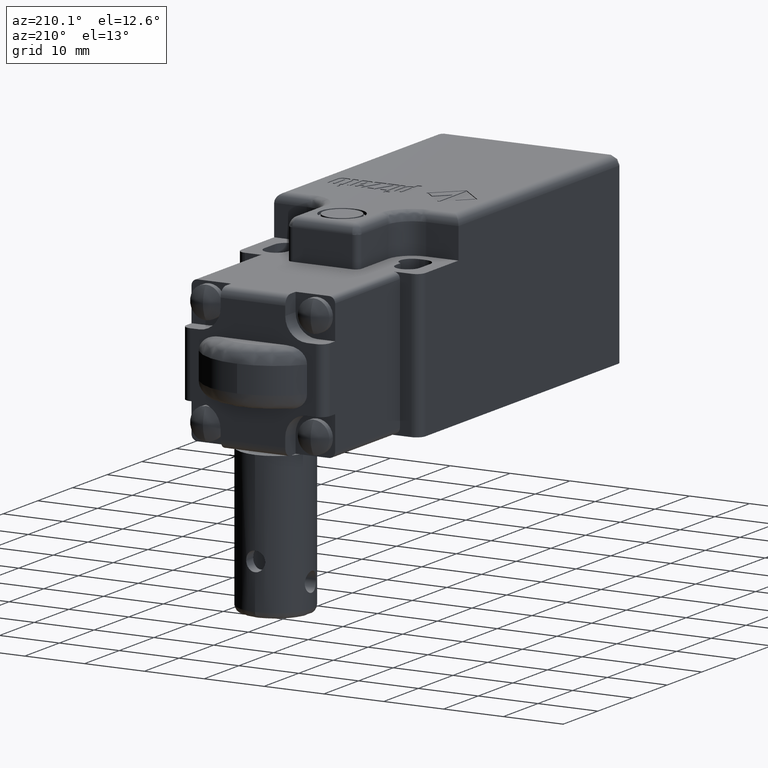
[diagram: clean part render]
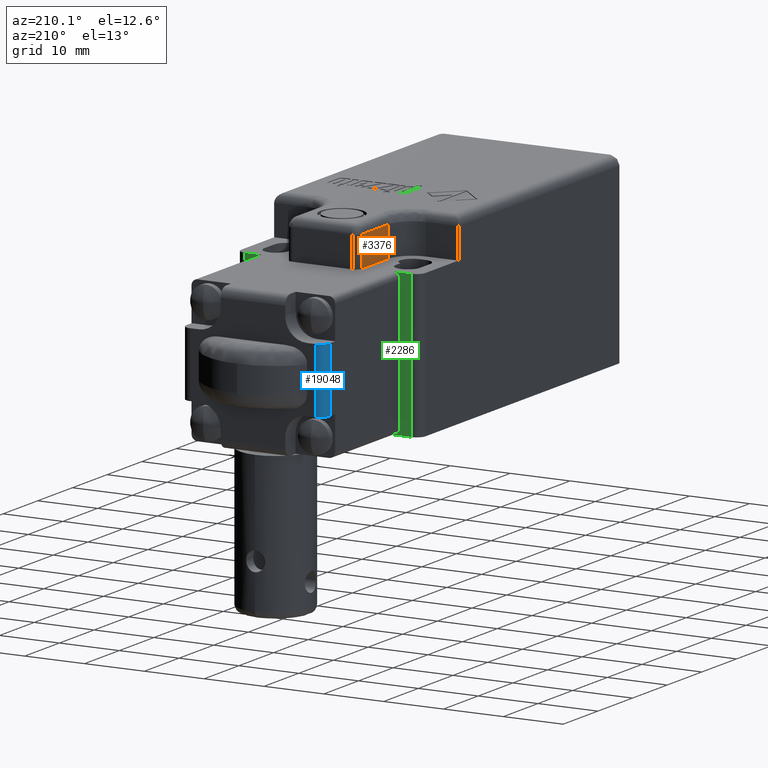
[diagram: same view with three faces highlighted in distinct colors, each labeled with its STEP entity id]
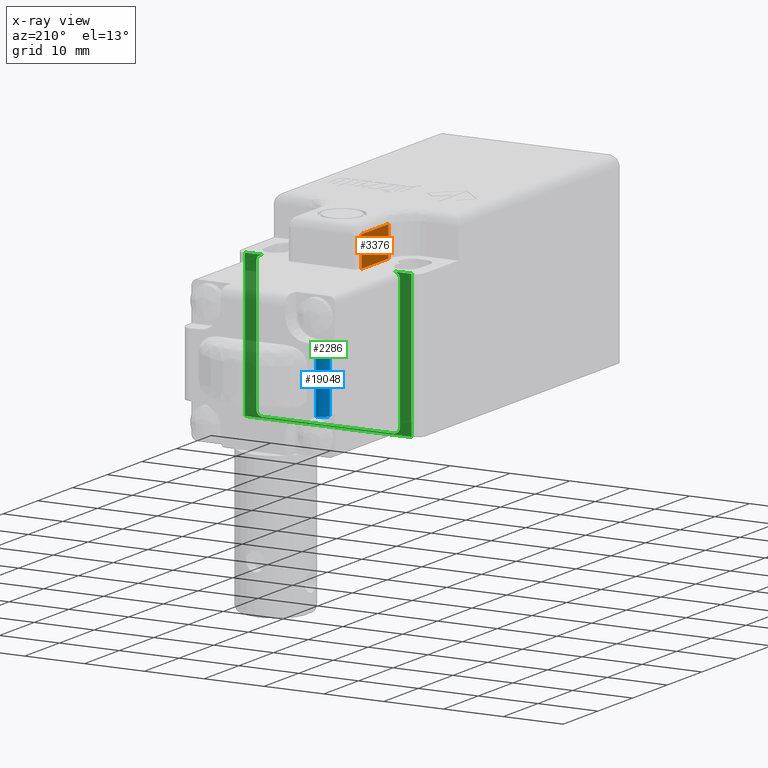
[diagram: x-ray of the same camera — body ghosted, the three highlighted faces saturated]
A machine part, auxiliary view with three faces highlighted in distinct colors.
The next image is the same camera in x-ray (body ghosted, the three faces saturated) — at least one of them is partly hidden behind the body in this view.
Their STEP definitions:

[orange] entity #3376 — the highlighted planar face has unit normal (1, 0, 0).
#3309=CARTESIAN_POINT('',(-6.000000000000004,7.699999999999994,12.000000000000004));
#3310=VERTEX_POINT('',#3309);
#3311=CARTESIAN_POINT('',(-6.000000000000004,7.699999999999994,17.100000000000001));
#3312=VERTEX_POINT('',#3311);
#3313=CARTESIAN_POINT('',(-6.000000000000004,7.699999999999994,12.000000000000004));
#3314=DIRECTION('',(0.0,0.0,1.0));
#3315=VECTOR('',#3314,5.099999999999998);
#3316=LINE('',#3313,#3315);
#3317=EDGE_CURVE('',#3310,#3312,#3316,.T.);
#3346=CARTESIAN_POINT('',(-6.000000000000004,-0.384999999999996,17.355000000000000));
#3347=DIRECTION('',(1.0,0.0,0.0));
#3348=DIRECTION('',(0.0,0.0,-1.0));
#3349=AXIS2_PLACEMENT_3D('',#3346,#3347,#3348);
#3350=PLANE('',#3349);
#3351=CARTESIAN_POINT('',(-6.000000000000004,3.469447E-015,12.000000000000004));
#3352=VERTEX_POINT('',#3351);
#3353=CARTESIAN_POINT('',(-6.000000000000004,3.469447E-015,17.100000000000001));
#3354=VERTEX_POINT('',#3353);
#3355=CARTESIAN_POINT('',(-6.000000000000004,3.469447E-015,12.000000000000004));
#3356=DIRECTION('',(0.0,0.0,1.0));
#3357=VECTOR('',#3356,5.099999999999998);
#3358=LINE('',#3355,#3357);
#3359=EDGE_CURVE('',#3352,#3354,#3358,.T.);
#3360=ORIENTED_EDGE('',*,*,#3359,.T.);
#3361=CARTESIAN_POINT('',(-6.000000000000004,3.469447E-015,17.100000000000001));
#3362=DIRECTION('',(0.0,1.0,0.0));
#3363=VECTOR('',#3362,7.699999999999990);
#3364=LINE('',#3361,#3363);
#3365=EDGE_CURVE('',#3354,#3312,#3364,.T.);
#3366=ORIENTED_EDGE('',*,*,#3365,.T.);
#3367=ORIENTED_EDGE('',*,*,#3317,.F.);
#3368=CARTESIAN_POINT('',(-6.000000000000004,3.469447E-015,12.000000000000004));
#3369=DIRECTION('',(0.0,1.0,0.0));
#3370=VECTOR('',#3369,7.699999999999990);
#3371=LINE('',#3368,#3370);
#3372=EDGE_CURVE('',#3352,#3310,#3371,.T.);
#3373=ORIENTED_EDGE('',*,*,#3372,.F.);
#3374=EDGE_LOOP('',(#3360,#3366,#3367,#3373));
#3375=FACE_OUTER_BOUND('',#3374,.T.);
#3376=ADVANCED_FACE('',(#3375),#3350,.F.);

[blue] entity #19048 — the highlighted cylindrical surface (edge-blend (fillet) strip) has radius 1.5 mm, axis along (0, 0, 1).
#18552=CARTESIAN_POINT('',(-12.000000000000005,27.199999999999996,5.400000000000002));
#18553=VERTEX_POINT('',#18552);
#18560=CARTESIAN_POINT('',(-12.000000000000005,27.199999999999996,-5.399999999999999));
#18561=VERTEX_POINT('',#18560);
#18562=CARTESIAN_POINT('',(-12.000000000000005,27.199999999999996,5.400000000000002));
#18563=DIRECTION('',(0.0,0.0,-1.0));
#18564=VECTOR('',#18563,10.800000000000001);
#18565=LINE('',#18562,#18564);
#18566=EDGE_CURVE('',#18553,#18561,#18565,.T.);
#18598=CARTESIAN_POINT('',(-10.500000000000005,28.699999999999996,-5.399999999999999));
#18599=VERTEX_POINT('',#18598);
#18608=CARTESIAN_POINT('',(-10.500000000000005,28.699999999999996,5.400000000000002));
#18609=VERTEX_POINT('',#18608);
#18610=CARTESIAN_POINT('',(-10.500000000000005,28.699999999999996,-5.399999999999999));
#18611=DIRECTION('',(0.0,0.0,1.0));
#18612=VECTOR('',#18611,10.800000000000001);
#18613=LINE('',#18610,#18612);
#18614=EDGE_CURVE('',#18599,#18609,#18613,.T.);
#18900=CARTESIAN_POINT('',(-10.500000000000005,27.199999999999996,-5.399999999999999));
#18901=DIRECTION('',(0.0,0.0,-1.0));
#18902=DIRECTION('',(1.0,0.0,0.0));
#18903=AXIS2_PLACEMENT_3D('',#18900,#18901,#18902);
#18904=CIRCLE('',#18903,1.500000000000000);
#18905=EDGE_CURVE('',#18561,#18599,#18904,.T.);
#19031=CARTESIAN_POINT('',(-10.500000000000007,27.199999999999999,-5.400000009999999));
#19032=DIRECTION('',(0.0,0.0,1.0));
#19033=DIRECTION('',(0.707106781186548,-0.707106781186547,0.0));
#19034=AXIS2_PLACEMENT_3D('',#19031,#19032,#19033);
#19035=CYLINDRICAL_SURFACE('',#19034,1.500000000000001);
#19036=ORIENTED_EDGE('',*,*,#18905,.F.);
#19037=ORIENTED_EDGE('',*,*,#18566,.F.);
#19038=CARTESIAN_POINT('',(-10.500000000000005,27.199999999999996,5.400000000000002));
#19039=DIRECTION('',(0.0,0.0,-1.0));
#19040=DIRECTION('',(1.0,0.0,0.0));
#19041=AXIS2_PLACEMENT_3D('',#19038,#19039,#19040);
#19042=CIRCLE('',#19041,1.500000000000000);
#19043=EDGE_CURVE('',#18553,#18609,#19042,.T.);
#19044=ORIENTED_EDGE('',*,*,#19043,.T.);
#19045=ORIENTED_EDGE('',*,*,#18614,.F.);
#19046=EDGE_LOOP('',(#19036,#19037,#19044,#19045));
#19047=FACE_OUTER_BOUND('',#19046,.T.);
#19048=ADVANCED_FACE('',(#19047),#19035,.T.);

[green] entity #2286 — the highlighted planar face has unit normal (0, -1, 0).
#301=CARTESIAN_POINT('',(13.900000000000006,6.999999999999991,-12.199999999999999));
#302=VERTEX_POINT('',#301);
#303=CARTESIAN_POINT('',(-13.900000000000006,6.999999999999991,-12.199999999999999));
#304=VERTEX_POINT('',#303);
#305=CARTESIAN_POINT('',(13.900000000000006,6.999999999999991,-12.199999999999999));
#306=DIRECTION('',(-1.0,0.0,0.0));
#307=VECTOR('',#306,27.800000000000011);
#308=LINE('',#305,#307);
#309=EDGE_CURVE('',#302,#304,#308,.T.);
#2171=CARTESIAN_POINT('',(-11.999999999999996,6.999999999999991,11.000000000000004));
#2172=VERTEX_POINT('',#2171);
#2173=CARTESIAN_POINT('',(-11.999999999999996,6.999999999999991,-11.0));
#2174=VERTEX_POINT('',#2173);
#2175=CARTESIAN_POINT('',(-11.999999999999996,6.999999999999991,11.000000000000004));
#2176=DIRECTION('',(0.0,0.0,-1.0));
#2177=VECTOR('',#2176,22.000000000000004);
#2178=LINE('',#2175,#2177);
#2179=EDGE_CURVE('',#2172,#2174,#2178,.T.);
#2197=CARTESIAN_POINT('',(-15.400000000000006,6.999999999999991,18.600000000000001));
#2198=DIRECTION('',(0.0,-1.0,0.0));
#2199=DIRECTION('',(0.0,0.0,-1.0));
#2200=AXIS2_PLACEMENT_3D('',#2197,#2198,#2199);
#2201=PLANE('',#2200);
#2202=ORIENTED_EDGE('',*,*,#309,.T.);
#2203=CARTESIAN_POINT('',(-13.900000000000006,6.999999999999991,12.000000000000004));
#2204=VERTEX_POINT('',#2203);
#2205=CARTESIAN_POINT('',(-13.900000000000006,6.999999999999991,-12.199999999999999));
#2206=DIRECTION('',(0.0,0.0,1.0));
#2207=VECTOR('',#2206,24.200000000000003);
#2208=LINE('',#2205,#2207);
#2209=EDGE_CURVE('',#304,#2204,#2208,.T.);
#2210=ORIENTED_EDGE('',*,*,#2209,.T.);
#2211=CARTESIAN_POINT('',(-10.999999999999996,6.999999999999991,12.000000000000004));
#2212=VERTEX_POINT('',#2211);
#2213=CARTESIAN_POINT('',(-10.999999999999996,6.999999999999991,12.000000000000004));
#2214=DIRECTION('',(-1.0,0.0,0.0));
#2215=VECTOR('',#2214,2.900000000000009);
#2216=LINE('',#2213,#2215);
#2217=EDGE_CURVE('',#2212,#2204,#2216,.T.);
#2218=ORIENTED_EDGE('',*,*,#2217,.F.);
#2219=CARTESIAN_POINT('',(-10.999999999999996,6.999999999999991,11.000000000000004));
#2220=DIRECTION('',(0.0,-1.0,0.0));
#2221=DIRECTION('',(0.0,0.0,-1.0));
#2222=AXIS2_PLACEMENT_3D('',#2219,#2220,#2221);
#2223=CIRCLE('',#2222,1.000000000000001);
#2224=EDGE_CURVE('',#2212,#2172,#2223,.T.);
#2225=ORIENTED_EDGE('',*,*,#2224,.T.);
#2226=ORIENTED_EDGE('',*,*,#2179,.T.);
#2227=CARTESIAN_POINT('',(-10.999999999999996,6.999999999999991,-11.999999999999996));
#2228=VERTEX_POINT('',#2227);
#2229=CARTESIAN_POINT('',(-10.999999999999996,6.999999999999991,-10.999999999999996));
#2230=DIRECTION('',(0.0,-1.0,0.0));
#2231=DIRECTION('',(0.0,0.0,-1.0));
#2232=AXIS2_PLACEMENT_3D('',#2229,#2230,#2231);
#2233=CIRCLE('',#2232,0.999999999999999);
#2234=EDGE_CURVE('',#2174,#2228,#2233,.T.);
#2235=ORIENTED_EDGE('',*,*,#2234,.T.);
#2236=CARTESIAN_POINT('',(10.999999999999996,6.999999999999991,-11.999999999999996));
#2237=VERTEX_POINT('',#2236);
#2238=CARTESIAN_POINT('',(-10.999999999999996,6.999999999999991,-11.999999999999996));
#2239=DIRECTION('',(1.0,0.0,0.0));
#2240=VECTOR('',#2239,21.999999999999993);
#2241=LINE('',#2238,#2240);
#2242=EDGE_CURVE('',#2228,#2237,#2241,.T.);
#2243=ORIENTED_EDGE('',*,*,#2242,.T.);
#2244=CARTESIAN_POINT('',(11.999999999999996,6.999999999999991,-11.0));
#2245=VERTEX_POINT('',#2244);
#2246=CARTESIAN_POINT('',(10.999999999999996,6.999999999999991,-10.999999999999996));
#2247=DIRECTION('',(0.0,1.0,0.0));
#2248=DIRECTION('',(0.0,0.0,-1.0));
#2249=AXIS2_PLACEMENT_3D('',#2246,#2247,#2248);
#2250=CIRCLE('',#2249,0.999999999999999);
#2251=EDGE_CURVE('',#2245,#2237,#2250,.T.);
#2252=ORIENTED_EDGE('',*,*,#2251,.F.);
#2253=CARTESIAN_POINT('',(11.999999999999996,6.999999999999991,11.000000000000004));
#2254=VERTEX_POINT('',#2253);
#2255=CARTESIAN_POINT('',(11.999999999999996,6.999999999999991,11.000000000000004));
#2256=DIRECTION('',(0.0,0.0,-1.0));
#2257=VECTOR('',#2256,22.000000000000004);
#2258=LINE('',#2255,#2257);
#2259=EDGE_CURVE('',#2254,#2245,#2258,.T.);
#2260=ORIENTED_EDGE('',*,*,#2259,.F.);
#2261=CARTESIAN_POINT('',(10.999999999999996,6.999999999999991,12.000000000000004));
#2262=VERTEX_POINT('',#2261);
#2263=CARTESIAN_POINT('',(10.999999999999996,6.999999999999991,11.000000000000004));
#2264=DIRECTION('',(0.0,1.0,0.0));
#2265=DIRECTION('',(0.0,0.0,-1.0));
#2266=AXIS2_PLACEMENT_3D('',#2263,#2264,#2265);
#2267=CIRCLE('',#2266,1.000000000000001);
#2268=EDGE_CURVE('',#2262,#2254,#2267,.T.);
#2269=ORIENTED_EDGE('',*,*,#2268,.F.);
#2270=CARTESIAN_POINT('',(13.900000000000006,6.999999999999991,12.000000000000004));
#2271=VERTEX_POINT('',#2270);
#2272=CARTESIAN_POINT('',(10.999999999999996,6.999999999999991,12.000000000000004));
#2273=DIRECTION('',(1.0,0.0,0.0));
#2274=VECTOR('',#2273,2.900000000000009);
#2275=LINE('',#2272,#2274);
#2276=EDGE_CURVE('',#2262,#2271,#2275,.T.);
#2277=ORIENTED_EDGE('',*,*,#2276,.T.);
#2278=CARTESIAN_POINT('',(13.900000000000006,6.999999999999991,-12.199999999999999));
#2279=DIRECTION('',(0.0,0.0,1.0));
#2280=VECTOR('',#2279,24.200000000000003);
#2281=LINE('',#2278,#2280);
#2282=EDGE_CURVE('',#302,#2271,#2281,.T.);
#2283=ORIENTED_EDGE('',*,*,#2282,.F.);
#2284=EDGE_LOOP('',(#2202,#2210,#2218,#2225,#2226,#2235,#2243,#2252,#2260,#2269,#2277,#2283));
#2285=FACE_OUTER_BOUND('',#2284,.T.);
#2286=ADVANCED_FACE('',(#2285),#2201,.F.);